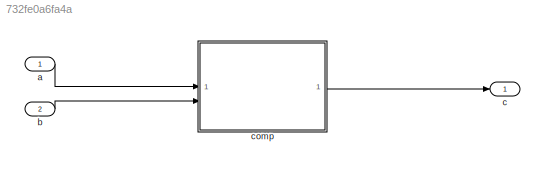
MODEL slx_732fe0a6fa4a
KIND model
CONFIG AbsTol = auto
CONFIG EnableMultiTasking = off
CONFIG FixedStep = auto
CONFIG MaxStep = auto
CONFIG MinStep = auto
CONFIG RelTol = 1e-3
CONFIG SampleTimeConstraint = Unconstrained
CONFIG SolverName = FixedStepDiscrete
CONFIG StartTime = 0.0
CONFIG StopTime = 10.0
BLOCK [Inport] a
  OutDataTypeStr = uint16
BLOCK [Inport] b
  OutDataTypeStr = uint16
  Port = 2
BLOCK [Outport] c
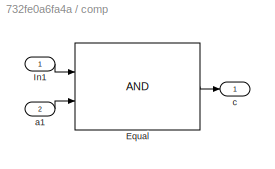
BLOCK [SubSystem] comp
BLOCK [RelationalOperator] comp/Equal
  InputSameDT = off
  OutDataTypeStr = boolean
  RndMeth = Floor
  ZeroCross = off
BLOCK [Inport] comp/In1
BLOCK [Inport] comp/a1
  Port = 2
BLOCK [Outport] comp/c
LINE a:1 -> comp:1
LINE b:1 -> comp:2
LINE comp/Equal:1 -> comp/c:1
LINE comp/In1:1 -> comp/Equal:1
LINE comp/a1:1 -> comp/Equal:2
LINE comp:1 -> c:1
